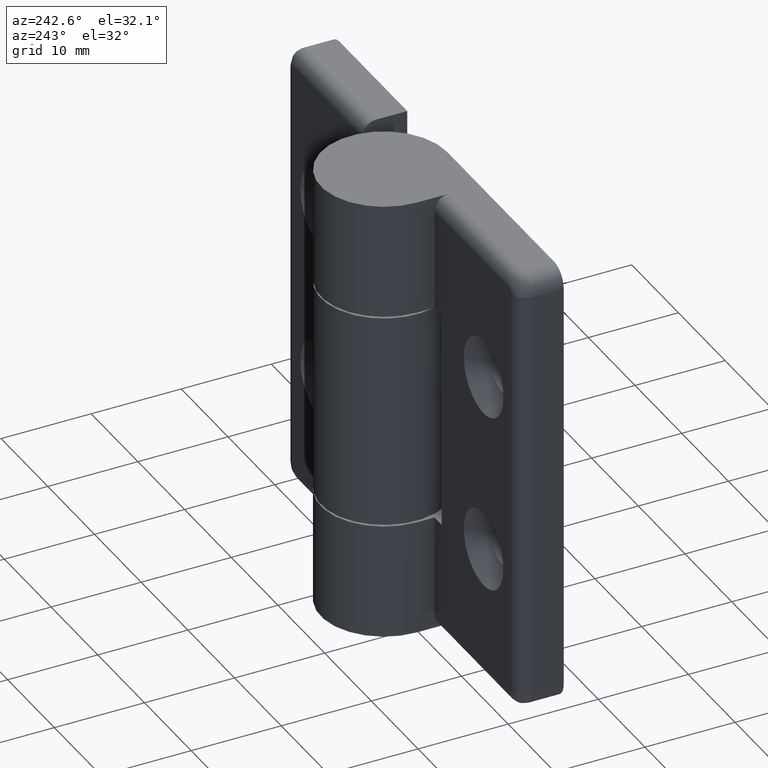
[diagram: clean part render]
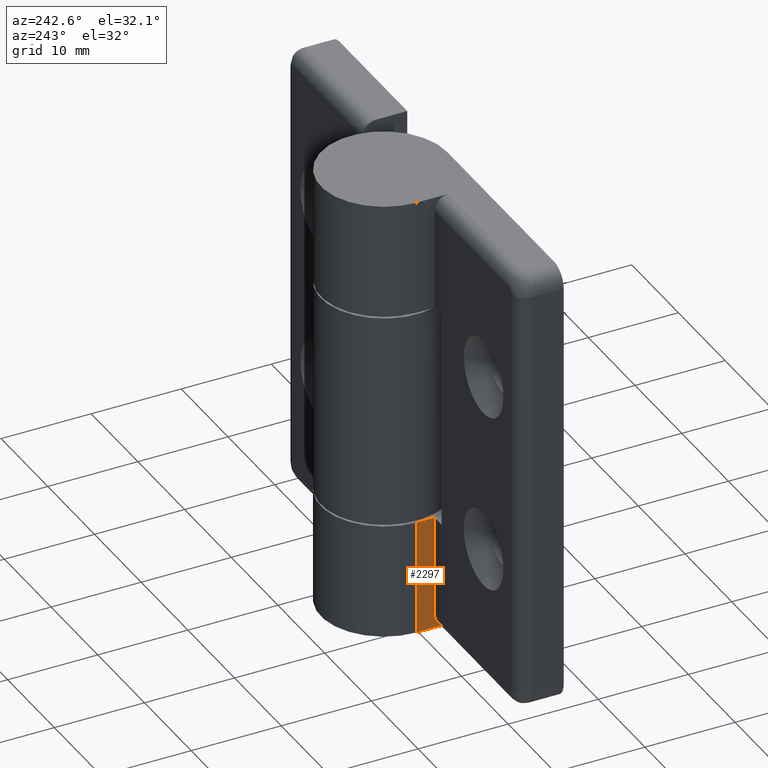
[diagram: same view with one face highlighted and labeled with its STEP entity id]
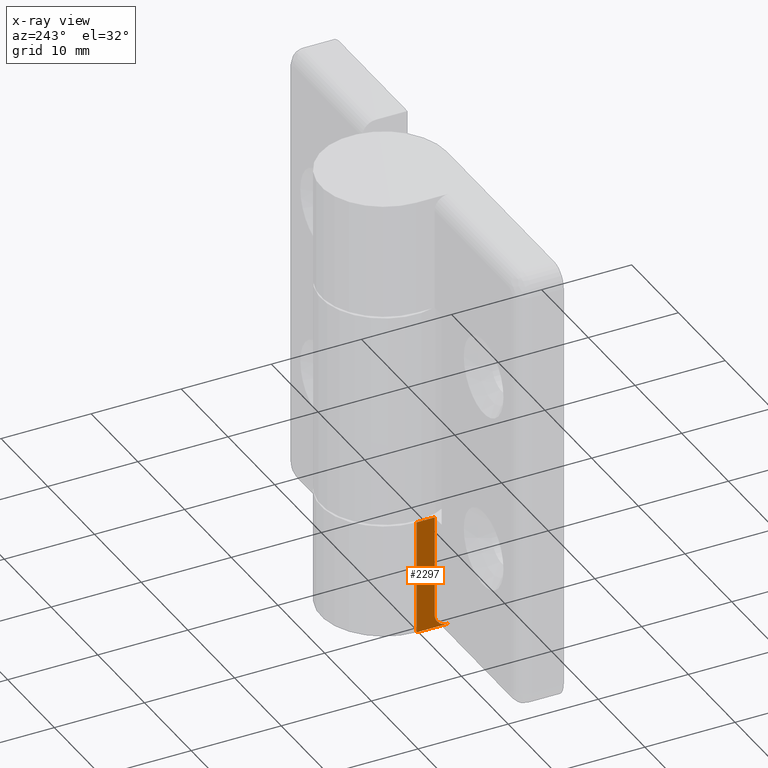
[diagram: x-ray of the same camera — body ghosted, the highlighted face saturated]
A machine part, auxiliary view. The second image highlights one B-rep face of the part: STEP entity #2297.
The next image is the same camera in x-ray: the body ghosted, the highlighted face saturated — about 0% of this face is hidden behind the body in this view.
In plain terms, the highlighted planar face has unit normal (-1, 0, 0).
Its self-contained STEP definition (entity closure, byte-faithful):
#92=PLANE('',#2526);
#221=FACE_OUTER_BOUND('',#383,.T.);
#383=EDGE_LOOP('',(#1819,#1820,#1821,#1822,#1823));
#534=LINE('',#3884,#687);
#540=LINE('',#3897,#693);
#543=LINE('',#3917,#696);
#553=LINE('',#3939,#706);
#687=VECTOR('',#3000,3.5);
#693=VECTOR('',#3010,11.3);
#696=VECTOR('',#3033,2.);
#706=VECTOR('',#3057,12.8);
#860=CIRCLE('',#2498,1.5);
#1038=VERTEX_POINT('',#3859);
#1039=VERTEX_POINT('',#3860);
#1046=VERTEX_POINT('',#3883);
#1051=VERTEX_POINT('',#3895);
#1058=VERTEX_POINT('',#3915);
#1294=EDGE_CURVE('',#1038,#1039,#860,.F.);
#1306=EDGE_CURVE('',#1046,#1039,#534,.T.);
#1313=EDGE_CURVE('',#1051,#1038,#540,.T.);
#1321=EDGE_CURVE('',#1051,#1058,#543,.T.);
#1333=EDGE_CURVE('',#1058,#1046,#553,.T.);
#1819=ORIENTED_EDGE('',*,*,#1321,.T.);
#1820=ORIENTED_EDGE('',*,*,#1333,.T.);
#1821=ORIENTED_EDGE('',*,*,#1306,.T.);
#1822=ORIENTED_EDGE('',*,*,#1294,.F.);
#1823=ORIENTED_EDGE('',*,*,#1313,.F.);
#2297=ADVANCED_FACE('',(#221),#92,.T.);
#2498=AXIS2_PLACEMENT_3D('',#3861,#2976,#2977);
#2526=AXIS2_PLACEMENT_3D('',#3942,#3061,#3062);
#2976=DIRECTION('center_axis',(1.,-5.55111512312578E-16,0.));
#2977=DIRECTION('ref_axis',(3.92523114670944E-16,0.707106781186549,-0.707106781186546));
#3000=DIRECTION('',(-5.55111512312578E-16,-1.,0.));
#3010=DIRECTION('',(0.,0.,-1.));
#3033=DIRECTION('',(5.55111512312578E-16,1.,0.));
#3057=DIRECTION('',(0.,0.,-1.));
#3061=DIRECTION('center_axis',(-1.,5.55111512312578E-16,0.));
#3062=DIRECTION('ref_axis',(0.,0.,1.));
#3859=CARTESIAN_POINT('',(-7.,-2.,-23.5));
#3860=CARTESIAN_POINT('',(-7.,-3.5,-25.));
#3861=CARTESIAN_POINT('Origin',(-7.,-3.5,-23.5));
#3883=CARTESIAN_POINT('',(-7.,8.57252759403147E-16,-25.));
#3884=CARTESIAN_POINT('',(-7.,-2.2187354638398,-25.));
#3895=CARTESIAN_POINT('',(-7.,-2.,-12.2));
#3897=CARTESIAN_POINT('',(-7.,-2.,0.));
#3915=CARTESIAN_POINT('',(-7.,9.83737892014152E-16,-12.2));
#3917=CARTESIAN_POINT('',(-7.,-4.5,-12.2));
#3939=CARTESIAN_POINT('',(-7.,8.57252759403147E-16,0.));
#3942=CARTESIAN_POINT('Origin',(-7.,-2.,0.));